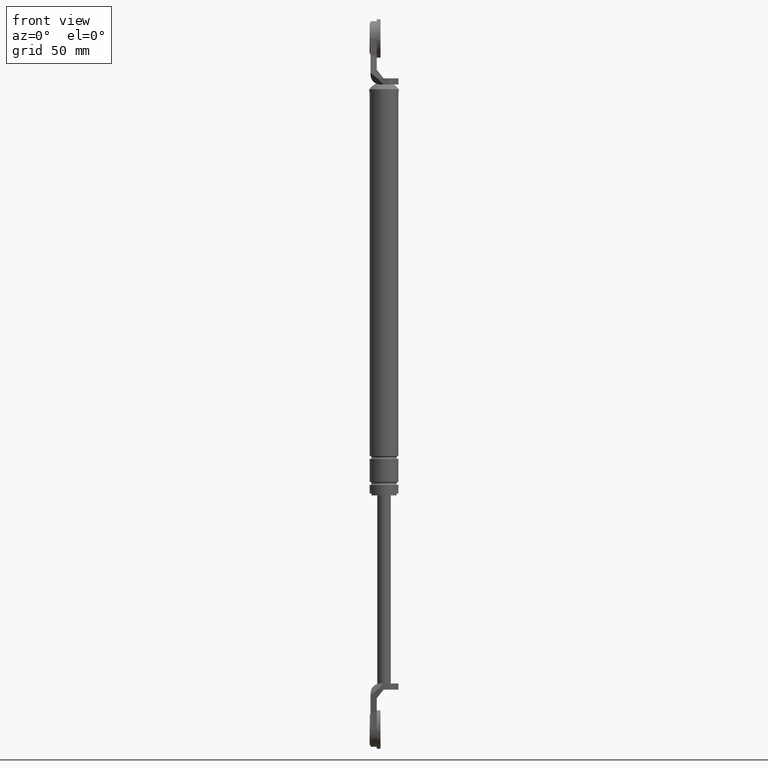
[diagram: clean part render]
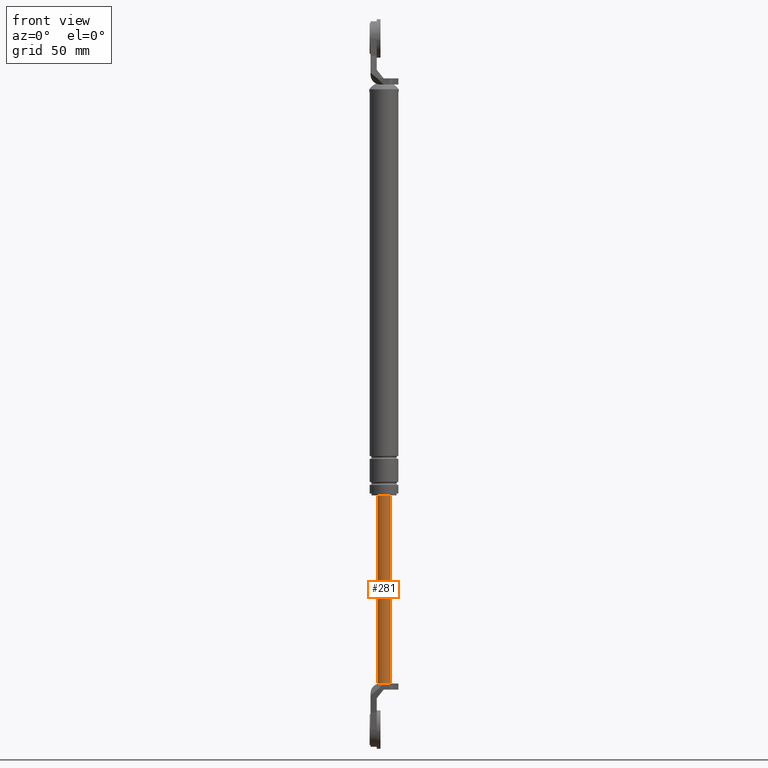
[diagram: same view with one face highlighted and labeled with its STEP entity id]
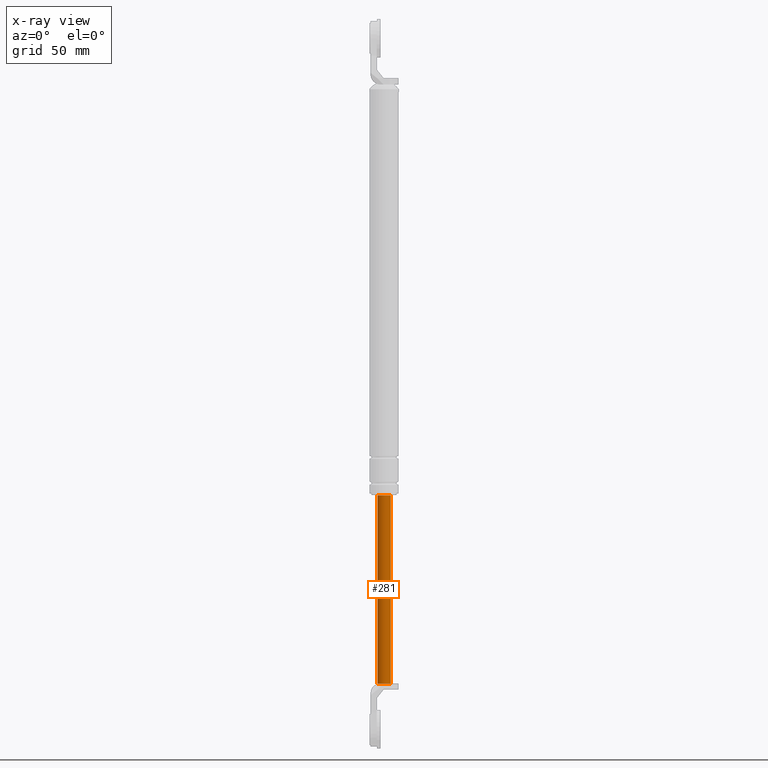
[diagram: x-ray of the same camera — body ghosted, the highlighted face saturated]
A machine part, front view. The second image highlights one B-rep face of the part: STEP entity #281.
The next image is the same camera in x-ray: the body ghosted, the highlighted face saturated — about 0% of this face is hidden behind the body in this view.
In plain terms, the highlighted cylindrical surface (edge-blend (fillet) strip) has radius 3.5 mm, axis along (-0, 0, 1).
Its self-contained STEP definition (entity closure, byte-faithful):
#281=ADVANCED_FACE('',(#1069),#1068,.T.);
#1068=CYLINDRICAL_SURFACE('',#1584,3.50000000000E+000);
#1069=FACE_OUTER_BOUND('',#1585,.T.);
#1581=CARTESIAN_POINT('',(7.00000000000E+000,6.39488462184E-014,-6.63000000000E+002));
#1582=DIRECTION('',(-0.00000000000E+000,-0.00000000000E+000,-1.00000000000E+000));
#1583=DIRECTION('',(1.00000000000E+000,-0.00000000000E+000,-0.00000000000E+000));
#1584=AXIS2_PLACEMENT_3D('',#1581,#1582,#1583);
#1585=EDGE_LOOP('',(#1983,#1984,#1985,#1986,#1987));
#1983=ORIENTED_EDGE('',*,*,#2158,.F.);
#1984=ORIENTED_EDGE('',*,*,#2172,.T.);
#1985=ORIENTED_EDGE('',*,*,#2192,.T.);
#1986=ORIENTED_EDGE('',*,*,#2156,.F.);
#1987=ORIENTED_EDGE('',*,*,#2193,.F.);
#2156=EDGE_CURVE('',#3264,#3263,#3271,.T.);
#2158=EDGE_CURVE('',#3277,#3285,#3286,.T.);
#2172=EDGE_CURVE('',#3277,#3371,#3378,.T.);
#2192=EDGE_CURVE('',#3371,#3263,#3506,.T.);
#2193=EDGE_CURVE('',#3285,#3264,#3512,.T.);
#3263=VERTEX_POINT('',#4188);
#3264=VERTEX_POINT('',#4189);
#3271=CIRCLE('',#4197,3.50000000000E+000);
#3277=VERTEX_POINT('',#4198);
#3285=VERTEX_POINT('',#4203);
#3286=(BOUNDED_CURVE() B_SPLINE_CURVE(3,(#4204,#4205,#4206,#4207,#4208,#4209,#4210,#4211,#4212,#4213),.UNSPECIFIED.,.F.,.F.) B_SPLINE_CURVE_WITH_KNOTS((4,2,2,2,4),(3.34434791223E-003,4.18541121011E-003,5.02647450800E-003,5.86753780588E-003,6.70946929516E-003),.UNSPECIFIED.) CURVE() GEOMETRIC_REPRESENTATION_ITEM() RATIONAL_B_SPLINE_CURVE((1.00000000000E+000,1.00000000000E+000,1.00000000000E+000,1.00000000000E+000,1.00000000000E+000,1.00000000000E+000,1.00000000000E+000,1.00000000000E+000,1.00000000000E+000,1.00000000000E+000)) REPRESENTATION_ITEM('') );
#3371=VERTEX_POINT('',#4267);
#3378=CIRCLE('',#4275,3.50000000000E+000);
#3506=(BOUNDED_CURVE() B_SPLINE_CURVE(1,(#4344,#4345),.UNSPECIFIED.,.F.,.F.) B_SPLINE_CURVE_WITH_KNOTS((2,2),(8.52874647819E-002,9.16666666692E-001),.UNSPECIFIED.) CURVE() GEOMETRIC_REPRESENTATION_ITEM() RATIONAL_B_SPLINE_CURVE((1.00000000000E+000,1.00000000000E+000)) REPRESENTATION_ITEM('') );
#3512=(BOUNDED_CURVE() B_SPLINE_CURVE(1,(#4346,#4347),.UNSPECIFIED.,.F.,.F.) B_SPLINE_CURVE_WITH_KNOTS((2,2),(8.33336917841E-002,9.16666666667E-001),.UNSPECIFIED.) CURVE() GEOMETRIC_REPRESENTATION_ITEM() RATIONAL_B_SPLINE_CURVE((7.50000000000E-001,7.50000000000E-001)) REPRESENTATION_ITEM('') );
#4188=CARTESIAN_POINT('',(1.05000000000E+001,6.39488462184E-014,2.38000000000E+002));
#4189=CARTESIAN_POINT('',(3.50000000000E+000,6.38008164818E-014,2.38000000000E+002));
#4194=CARTESIAN_POINT('',(7.00000000000E+000,6.39488462184E-014,2.38000000000E+002));
#4195=DIRECTION('',(0.00000000000E+000,0.00000000000E+000,-1.00000000000E+000));
#4196=DIRECTION('',(1.00000000000E+000,1.22460635382E-016,0.00000000000E+000));
#4197=AXIS2_PLACEMENT_3D('',#4194,#4195,#4196);
#4198=CARTESIAN_POINT('',(5.00000000000E+000,2.87228132327E+000,3.36000000000E+002));
#4203=CARTESIAN_POINT('',(3.50000091517E+000,-2.53326592988E-003,3.36230303704E+002));
#4204=CARTESIAN_POINT('',(5.00000000000E+000,2.87228132327E+000,3.36000000000E+002));
#4205=CARTESIAN_POINT('',(4.76716664125E+000,2.71015698199E+000,3.36000000000E+002));
#4206=CARTESIAN_POINT('',(4.55808157072E+000,2.52318194664E+000,3.36016035406E+002));
#4207=CARTESIAN_POINT('',(4.18584671777E+000,2.09998906074E+000,3.36063164029E+002));
#4208=CARTESIAN_POINT('',(4.02654942899E+000,1.86724781926E+000,3.36093885871E+002));
#4209=CARTESIAN_POINT('',(3.76803305696E+000,1.37201034832E+000,3.36152338779E+002));
#4210=CARTESIAN_POINT('',(3.66724217685E+000,1.10490389736E+000,3.36180398209E+002));
#4211=CARTESIAN_POINT('',(3.53414800065E+000,5.62100746100E-001,3.36219196432E+002));
#4212=CARTESIAN_POINT('',(3.49986644238E+000,2.81243707189E-001,3.36230345995E+002));
#4213=CARTESIAN_POINT('',(3.50000053060E+000,-1.94923060108E-003,3.36230303826E+002));
#4267=CARTESIAN_POINT('',(1.05000000000E+001,6.30200217923E-014,3.36000000000E+002));
#4272=CARTESIAN_POINT('',(7.00000000000E+000,6.39488462184E-014,3.36000000000E+002));
#4273=DIRECTION('',(0.00000000000E+000,-0.00000000000E+000,-1.00000000000E+000));
#4274=DIRECTION('',(-5.71428571429E-001,-8.20651806648E-001,0.00000000000E+000));
#4275=AXIS2_PLACEMENT_3D('',#4272,#4273,#4274);
#4344=CARTESIAN_POINT('',(1.05000000000E+001,6.39488462184E-014,3.35999999985E+002));
#4345=CARTESIAN_POINT('',(1.05000000000E+001,6.39488462184E-014,2.37999999997E+002));
#4346=CARTESIAN_POINT('',(3.50000000000E+000,6.39488462184E-014,3.36230303742E+002));
#4347=CARTESIAN_POINT('',(3.50000000000E+000,6.39488462184E-014,2.38000000000E+002));